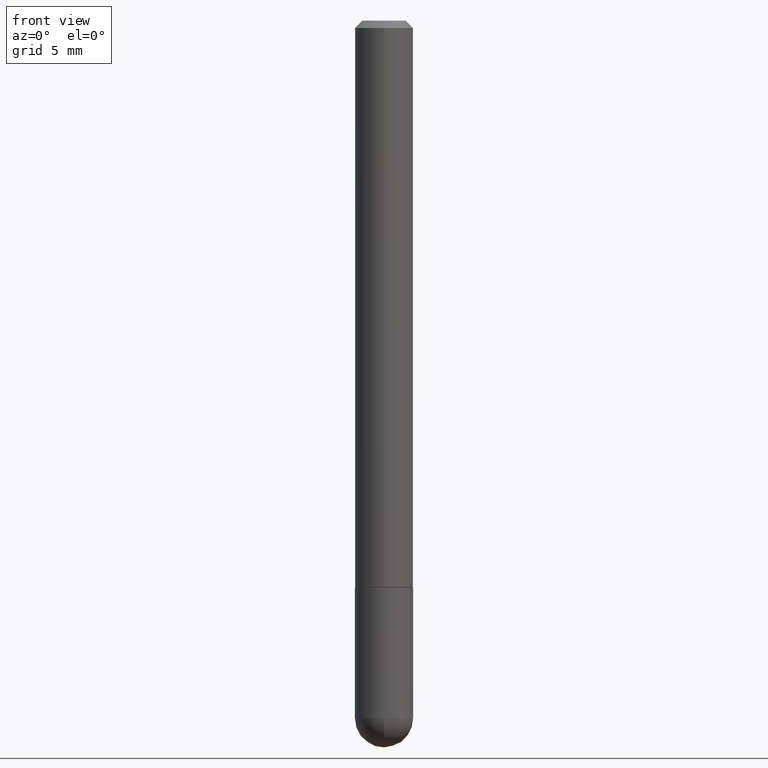
[diagram: clean part render]
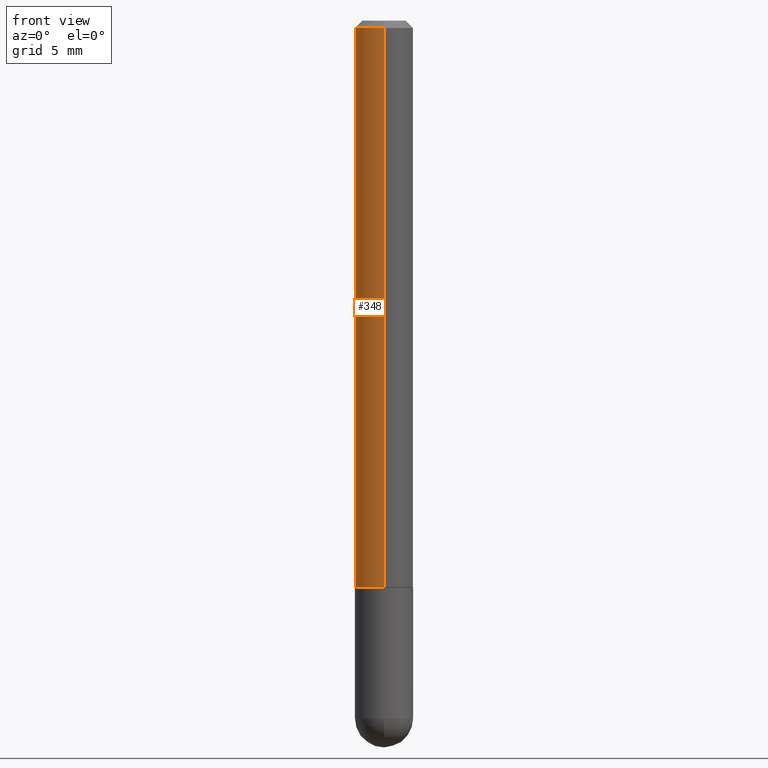
[diagram: same view with one face highlighted and labeled with its STEP entity id]
A machine part, front view. The second image highlights one B-rep face of the part: STEP entity #348.
In plain terms, the highlighted cylindrical surface (edge-blend (fillet) strip) has radius 2.0003 mm, axis along (-0, 0, 1).
Its self-contained STEP definition (entity closure, byte-faithful):
#6 = AXIS2_PLACEMENT_3D ( 'NONE', #162, #276, #313 ) ;
#10 = ORIENTED_EDGE ( 'NONE', *, *, #114, .T. ) ;
#11 = VERTEX_POINT ( 'NONE', #274 ) ;
#29 = DIRECTION ( 'NONE',  ( -6.982962677686265922E-15, -1.000000000000000000, 3.469013325287952110E-15 ) ) ;
#42 = CIRCLE ( 'NONE', #311, 0.07875000000000002831 ) ;
#54 = CIRCLE ( 'NONE', #137, 0.07875000000000022260 ) ;
#69 = FACE_OUTER_BOUND ( 'NONE', #147, .T. ) ;
#95 = CARTESIAN_POINT ( 'NONE',  ( -5.402642173245077911E-16, -0.07875000000000009770, -0.01999999999999974368 ) ) ;
#114 = EDGE_CURVE ( 'NONE', #11, #340, #229, .T. ) ;
#133 = EDGE_CURVE ( 'NONE', #184, #351, #141, .T. ) ;
#137 = AXIS2_PLACEMENT_3D ( 'NONE', #149, #269, #205 ) ;
#141 = LINE ( 'NONE', #232, #164 ) ;
#147 = EDGE_LOOP ( 'NONE', ( #390, #233, #10, #397 ) ) ;
#149 = CARTESIAN_POINT ( 'NONE',  ( 3.752448535005587438E-29, -5.357155402748111845E-15, -1.534399999999999986 ) ) ;
#162 = CARTESIAN_POINT ( 'NONE',  ( 0.000000000000000000, 0.000000000000000000, 0.000000000000000000 ) ) ;
#164 = VECTOR ( 'NONE', #345, 39.37007874015748143 ) ;
#173 = CARTESIAN_POINT ( 'NONE',  ( -5.499083108677942332E-16, -0.07875000000000011158, 2.749452476319176875E-16 ) ) ;
#184 = VERTEX_POINT ( 'NONE', #307 ) ;
#191 = CYLINDRICAL_SURFACE ( 'NONE', #6, 0.07875000000000011158 ) ;
#204 = CARTESIAN_POINT ( 'NONE',  ( 4.891095587859216689E-31, -6.982736447794729618E-17, -0.02000000000000001776 ) ) ;
#205 = DIRECTION ( 'NONE',  ( -6.982962677686265133E-15, -1.000000000000000000, 3.469013325287943433E-15 ) ) ;
#229 = LINE ( 'NONE', #173, #231 ) ;
#231 = VECTOR ( 'NONE', #319, 39.37007874015748143 ) ;
#232 = CARTESIAN_POINT ( 'NONE',  ( 5.595524044110795906E-16, 0.07875000000000011158, -2.749452476319176875E-16 ) ) ;
#233 = ORIENTED_EDGE ( 'NONE', *, *, #410, .T. ) ;
#254 = EDGE_CURVE ( 'NONE', #351, #340, #42, .T. ) ;
#269 = DIRECTION ( 'NONE',  ( -2.445547793929605997E-29, 3.491368223897361875E-15, 1.000000000000000000 ) ) ;
#274 = CARTESIAN_POINT ( 'NONE',  ( -5.499083108677574525E-16, -0.07875000000000557943, -1.534399999999999542 ) ) ;
#276 = DIRECTION ( 'NONE',  ( -2.445547793929605997E-29, 3.491368223897361875E-15, 1.000000000000000000 ) ) ;
#296 = DIRECTION ( 'NONE',  ( -2.445547793929605997E-29, 3.491368223897361875E-15, 1.000000000000000000 ) ) ;
#307 = CARTESIAN_POINT ( 'NONE',  ( 5.595524044110990163E-16, 0.07874999999999485190, -1.534400000000000208 ) ) ;
#311 = AXIS2_PLACEMENT_3D ( 'NONE', #204, #296, #29 ) ;
#313 = DIRECTION ( 'NONE',  ( -6.982962677686265922E-15, -1.000000000000000000, 3.491368223897362664E-15 ) ) ;
#319 = DIRECTION ( 'NONE',  ( -2.445547793929606278E-29, 3.491368223897361875E-15, 1.000000000000000000 ) ) ;
#340 = VERTEX_POINT ( 'NONE', #95 ) ;
#345 = DIRECTION ( 'NONE',  ( -2.445547793929606278E-29, 3.491368223897361875E-15, 1.000000000000000000 ) ) ;
#348 = ADVANCED_FACE ( 'NONE', ( #69 ), #191, .T. ) ;
#351 = VERTEX_POINT ( 'NONE', #408 ) ;
#390 = ORIENTED_EDGE ( 'NONE', *, *, #133, .F. ) ;
#397 = ORIENTED_EDGE ( 'NONE', *, *, #254, .F. ) ;
#408 = CARTESIAN_POINT ( 'NONE',  ( 5.499083108677941345E-16, 0.07874999999999995892, -0.02000000000000029185 ) ) ;
#410 = EDGE_CURVE ( 'NONE', #184, #11, #54, .T. ) ;